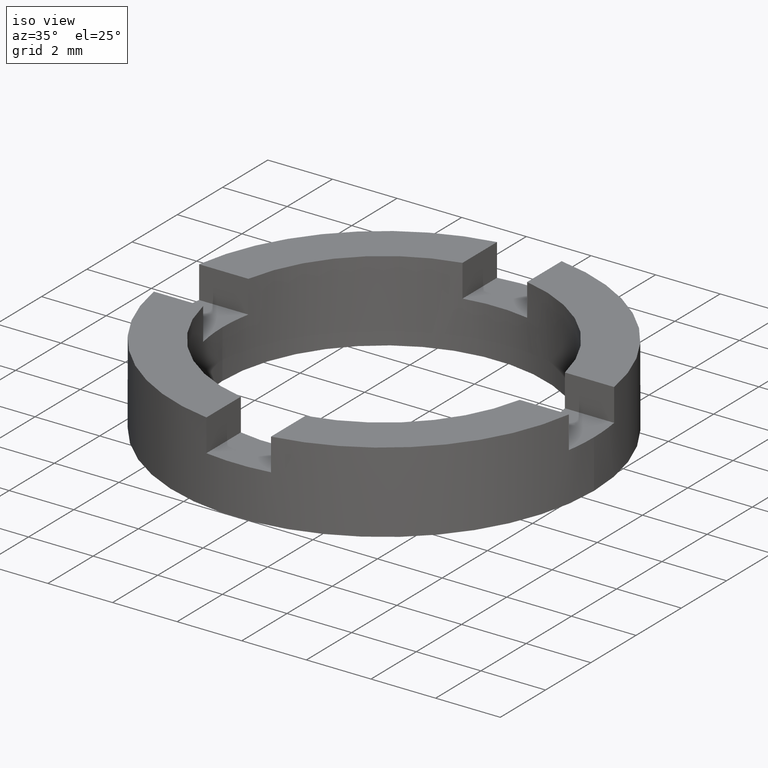
[diagram: clean part render]
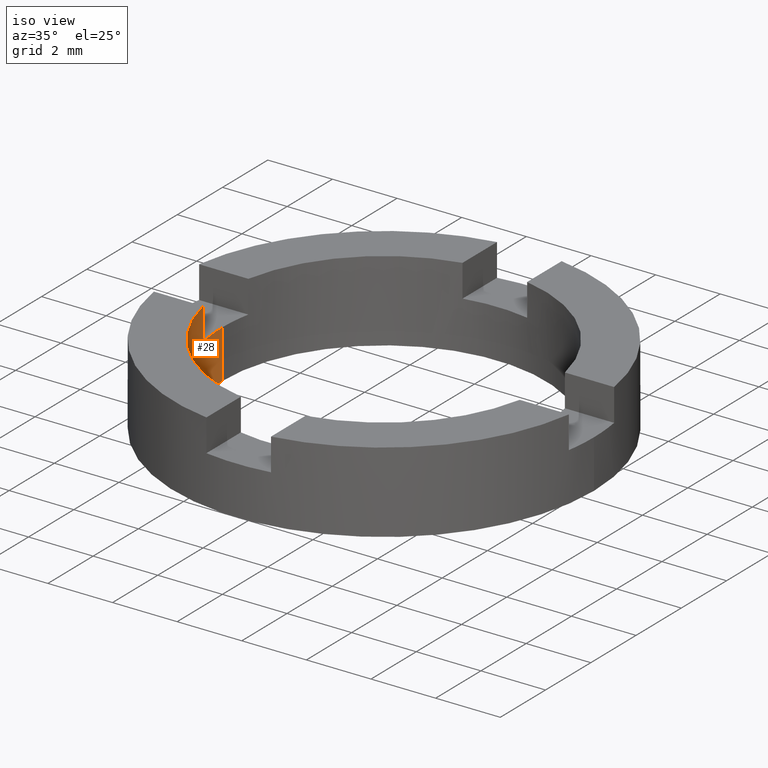
[diagram: same view with one face highlighted and labeled with its STEP entity id]
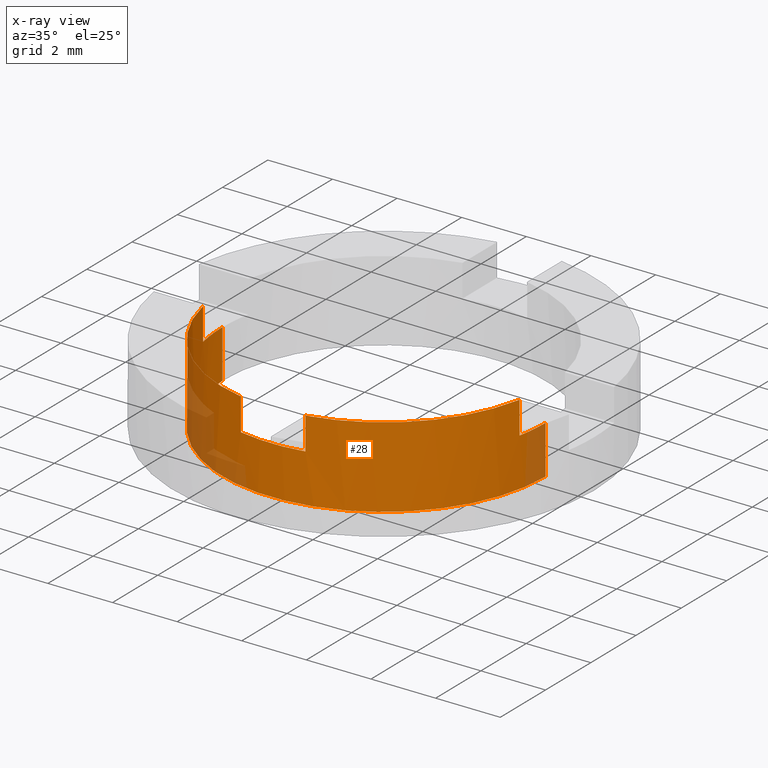
[diagram: x-ray of the same camera — body ghosted, the highlighted face saturated]
A machine part, iso view. The second image highlights one B-rep face of the part: STEP entity #28.
The next image is the same camera in x-ray: the body ghosted, the highlighted face saturated — about 11% of this face is hidden behind the body in this view.
In plain terms, the highlighted cylindrical surface (partial cylindrical patch) has radius 5 mm, axis along (-0, -0, -1).
Its self-contained STEP definition (entity closure, byte-faithful):
#4 = ORIENTED_EDGE ( 'NONE', *, *, #478, .T. ) ;
#8 = DIRECTION ( 'NONE',  ( -0.000000000000000000, -0.000000000000000000, -1.000000000000000000 ) ) ;
#15 = EDGE_LOOP ( 'NONE', ( #261, #4, #444, #628, #541, #105, #370, #594, #532, #190, #615, #154 ) ) ;
#28 = ADVANCED_FACE ( 'NONE', ( #378 ), #383, .F. ) ;
#39 = EDGE_CURVE ( 'NONE', #697, #195, #647, .T. ) ;
#46 = LINE ( 'NONE', #94, #338 ) ;
#47 = DIRECTION ( 'NONE',  ( 0.000000000000000000, -0.000000000000000000, -1.000000000000000000 ) ) ;
#51 = CIRCLE ( 'NONE', #525, 5.000000000000000000 ) ;
#76 = VECTOR ( 'NONE', #742, 1000.000000000000000 ) ;
#84 = VERTEX_POINT ( 'NONE', #303 ) ;
#89 = CIRCLE ( 'NONE', #132, 5.000000000000000000 ) ;
#94 = CARTESIAN_POINT ( 'NONE',  ( 5.000000000000000000, 6.123233995736766282E-16, 2.500000000000000000 ) ) ;
#95 = VERTEX_POINT ( 'NONE', #462 ) ;
#98 = LINE ( 'NONE', #553, #320 ) ;
#105 = ORIENTED_EDGE ( 'NONE', *, *, #728, .T. ) ;
#110 = DIRECTION ( 'NONE',  ( -0.000000000000000000, -0.000000000000000000, 1.000000000000000000 ) ) ;
#131 = VERTEX_POINT ( 'NONE', #227 ) ;
#132 = AXIS2_PLACEMENT_3D ( 'NONE', #445, #47, #612 ) ;
#137 = VECTOR ( 'NONE', #503, 1000.000000000000000 ) ;
#153 = VERTEX_POINT ( 'NONE', #362 ) ;
#154 = ORIENTED_EDGE ( 'NONE', *, *, #428, .F. ) ;
#158 = EDGE_CURVE ( 'NONE', #496, #195, #315, .T. ) ;
#160 = AXIS2_PLACEMENT_3D ( 'NONE', #251, #301, #483 ) ;
#177 = CARTESIAN_POINT ( 'NONE',  ( -0.9999999999999986677, -4.898979485566356651, 1.500000000000000000 ) ) ;
#180 = CARTESIAN_POINT ( 'NONE',  ( 0.000000000000000000, 0.000000000000000000, 1.500000000000000000 ) ) ;
#181 = EDGE_CURVE ( 'NONE', #760, #697, #344, .T. ) ;
#185 = VERTEX_POINT ( 'NONE', #515 ) ;
#190 = ORIENTED_EDGE ( 'NONE', *, *, #226, .T. ) ;
#193 = DIRECTION ( 'NONE',  ( 0.000000000000000000, 0.000000000000000000, 1.000000000000000000 ) ) ;
#195 = VERTEX_POINT ( 'NONE', #727 ) ;
#208 = DIRECTION ( 'NONE',  ( -1.000000000000000000, 0.000000000000000000, 0.000000000000000000 ) ) ;
#212 = AXIS2_PLACEMENT_3D ( 'NONE', #425, #470, #679 ) ;
#217 = CARTESIAN_POINT ( 'NONE',  ( 4.898979485566353098, -1.000000000000019318, 1.500000000000000000 ) ) ;
#218 = CARTESIAN_POINT ( 'NONE',  ( 0.000000000000000000, 0.000000000000000000, 2.500000000000000000 ) ) ;
#221 = CARTESIAN_POINT ( 'NONE',  ( 5.000000000000000000, 6.123233995736766282E-16, 0.000000000000000000 ) ) ;
#225 = DIRECTION ( 'NONE',  ( 0.000000000000000000, -0.000000000000000000, -1.000000000000000000 ) ) ;
#226 = EDGE_CURVE ( 'NONE', #760, #131, #631, .T. ) ;
#227 = CARTESIAN_POINT ( 'NONE',  ( 1.000000000000001332, -4.898979485566355763, 2.500000000000000000 ) ) ;
#251 = CARTESIAN_POINT ( 'NONE',  ( 0.000000000000000000, 0.000000000000000000, 0.000000000000000000 ) ) ;
#260 = DIRECTION ( 'NONE',  ( 0.000000000000000000, 0.000000000000000000, 1.000000000000000000 ) ) ;
#261 = ORIENTED_EDGE ( 'NONE', *, *, #271, .F. ) ;
#271 = EDGE_CURVE ( 'NONE', #95, #185, #89, .T. ) ;
#293 = CARTESIAN_POINT ( 'NONE',  ( -4.898979485566360204, -0.9999999999999829026, 1.500000000000000000 ) ) ;
#298 = CARTESIAN_POINT ( 'NONE',  ( 1.000000000000001332, -4.898979485566355763, 1.500000000000000000 ) ) ;
#301 = DIRECTION ( 'NONE',  ( 0.000000000000000000, 0.000000000000000000, 1.000000000000000000 ) ) ;
#303 = CARTESIAN_POINT ( 'NONE',  ( 4.898979485566353098, -1.000000000000019318, 2.500000000000000000 ) ) ;
#315 = CIRCLE ( 'NONE', #351, 5.000000000000000000 ) ;
#316 = CIRCLE ( 'NONE', #160, 5.000000000000000000 ) ;
#320 = VECTOR ( 'NONE', #8, 1000.000000000000000 ) ;
#322 = LINE ( 'NONE', #217, #582 ) ;
#328 = CIRCLE ( 'NONE', #556, 5.000000000000000000 ) ;
#332 = CARTESIAN_POINT ( 'NONE',  ( 1.000000000000001332, -4.898979485566355763, 1.500000000000000000 ) ) ;
#335 = DIRECTION ( 'NONE',  ( 1.000000000000000000, 0.000000000000000000, 0.000000000000000000 ) ) ;
#338 = VECTOR ( 'NONE', #508, 1000.000000000000000 ) ;
#340 = LINE ( 'NONE', #722, #568 ) ;
#344 = CIRCLE ( 'NONE', #212, 5.000000000000000000 ) ;
#351 = AXIS2_PLACEMENT_3D ( 'NONE', #776, #193, #335 ) ;
#362 = CARTESIAN_POINT ( 'NONE',  ( -5.000000000000000000, 0.000000000000000000, 1.500000000000000000 ) ) ;
#370 = ORIENTED_EDGE ( 'NONE', *, *, #158, .T. ) ;
#378 = FACE_OUTER_BOUND ( 'NONE', #15, .T. ) ;
#383 = CYLINDRICAL_SURFACE ( 'NONE', #472, 5.000000000000000000 ) ;
#390 = VERTEX_POINT ( 'NONE', #221 ) ;
#417 = CARTESIAN_POINT ( 'NONE',  ( -0.9999999999999986677, -4.898979485566356651, 1.500000000000000000 ) ) ;
#425 = CARTESIAN_POINT ( 'NONE',  ( 0.000000000000000000, 0.000000000000000000, 1.500000000000000000 ) ) ;
#428 = EDGE_CURVE ( 'NONE', #185, #84, #322, .T. ) ;
#429 = EDGE_CURVE ( 'NONE', #153, #758, #98, .T. ) ;
#444 = ORIENTED_EDGE ( 'NONE', *, *, #574, .F. ) ;
#445 = CARTESIAN_POINT ( 'NONE',  ( 0.000000000000000000, 0.000000000000000000, 1.500000000000000000 ) ) ;
#453 = DIRECTION ( 'NONE',  ( -0.000000000000000000, -0.000000000000000000, -1.000000000000000000 ) ) ;
#460 = CARTESIAN_POINT ( 'NONE',  ( -4.898979485566360204, -0.9999999999999829026, 2.500000000000000000 ) ) ;
#462 = CARTESIAN_POINT ( 'NONE',  ( 5.000000000000000000, 6.123233995736766282E-16, 1.500000000000000000 ) ) ;
#470 = DIRECTION ( 'NONE',  ( 0.000000000000000000, -0.000000000000000000, -1.000000000000000000 ) ) ;
#472 = AXIS2_PLACEMENT_3D ( 'NONE', #499, #453, #208 ) ;
#478 = EDGE_CURVE ( 'NONE', #95, #390, #46, .T. ) ;
#483 = DIRECTION ( 'NONE',  ( 1.000000000000000000, 0.000000000000000000, 0.000000000000000000 ) ) ;
#496 = VERTEX_POINT ( 'NONE', #460 ) ;
#499 = CARTESIAN_POINT ( 'NONE',  ( 0.000000000000000000, 0.000000000000000000, 2.500000000000000000 ) ) ;
#503 = DIRECTION ( 'NONE',  ( -0.000000000000000000, -0.000000000000000000, 1.000000000000000000 ) ) ;
#508 = DIRECTION ( 'NONE',  ( -0.000000000000000000, -0.000000000000000000, -1.000000000000000000 ) ) ;
#515 = CARTESIAN_POINT ( 'NONE',  ( 4.898979485566353098, -1.000000000000019318, 1.500000000000000000 ) ) ;
#517 = DIRECTION ( 'NONE',  ( -0.000000000000000000, -0.000000000000000000, 1.000000000000000000 ) ) ;
#525 = AXIS2_PLACEMENT_3D ( 'NONE', #180, #225, #667 ) ;
#532 = ORIENTED_EDGE ( 'NONE', *, *, #181, .F. ) ;
#541 = ORIENTED_EDGE ( 'NONE', *, *, #733, .F. ) ;
#553 = CARTESIAN_POINT ( 'NONE',  ( -5.000000000000000000, 0.000000000000000000, 2.500000000000000000 ) ) ;
#556 = AXIS2_PLACEMENT_3D ( 'NONE', #218, #260, #778 ) ;
#568 = VECTOR ( 'NONE', #517, 1000.000000000000000 ) ;
#574 = EDGE_CURVE ( 'NONE', #758, #390, #316, .T. ) ;
#582 = VECTOR ( 'NONE', #110, 1000.000000000000000 ) ;
#594 = ORIENTED_EDGE ( 'NONE', *, *, #39, .F. ) ;
#612 = DIRECTION ( 'NONE',  ( 1.000000000000000000, 0.000000000000000000, 0.000000000000000000 ) ) ;
#615 = ORIENTED_EDGE ( 'NONE', *, *, #704, .T. ) ;
#628 = ORIENTED_EDGE ( 'NONE', *, *, #429, .F. ) ;
#631 = LINE ( 'NONE', #298, #76 ) ;
#647 = LINE ( 'NONE', #417, #137 ) ;
#653 = VERTEX_POINT ( 'NONE', #293 ) ;
#667 = DIRECTION ( 'NONE',  ( 1.000000000000000000, 7.105427357601001859E-15, 0.000000000000000000 ) ) ;
#677 = CARTESIAN_POINT ( 'NONE',  ( -5.000000000000000000, 0.000000000000000000, 0.000000000000000000 ) ) ;
#679 = DIRECTION ( 'NONE',  ( 1.000000000000000000, 0.000000000000000000, 0.000000000000000000 ) ) ;
#697 = VERTEX_POINT ( 'NONE', #177 ) ;
#704 = EDGE_CURVE ( 'NONE', #131, #84, #328, .T. ) ;
#722 = CARTESIAN_POINT ( 'NONE',  ( -4.898979485566360204, -0.9999999999999829026, 1.500000000000000000 ) ) ;
#727 = CARTESIAN_POINT ( 'NONE',  ( -0.9999999999999986677, -4.898979485566356651, 2.500000000000000000 ) ) ;
#728 = EDGE_CURVE ( 'NONE', #653, #496, #340, .T. ) ;
#733 = EDGE_CURVE ( 'NONE', #653, #153, #51, .T. ) ;
#742 = DIRECTION ( 'NONE',  ( -0.000000000000000000, -0.000000000000000000, 1.000000000000000000 ) ) ;
#758 = VERTEX_POINT ( 'NONE', #677 ) ;
#760 = VERTEX_POINT ( 'NONE', #332 ) ;
#776 = CARTESIAN_POINT ( 'NONE',  ( 0.000000000000000000, 0.000000000000000000, 2.500000000000000000 ) ) ;
#778 = DIRECTION ( 'NONE',  ( 1.000000000000000000, 0.000000000000000000, 0.000000000000000000 ) ) ;